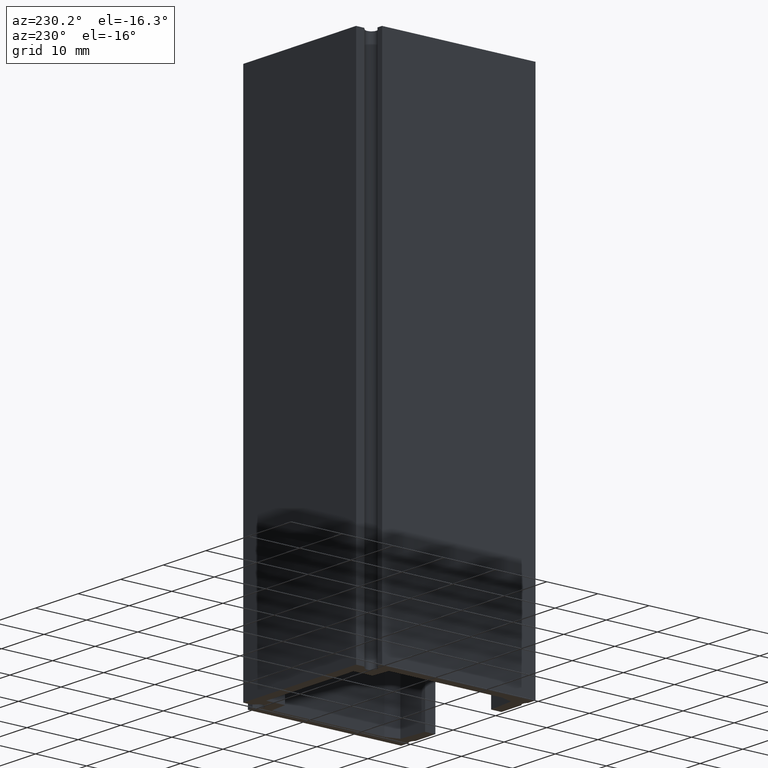
[diagram: clean part render]
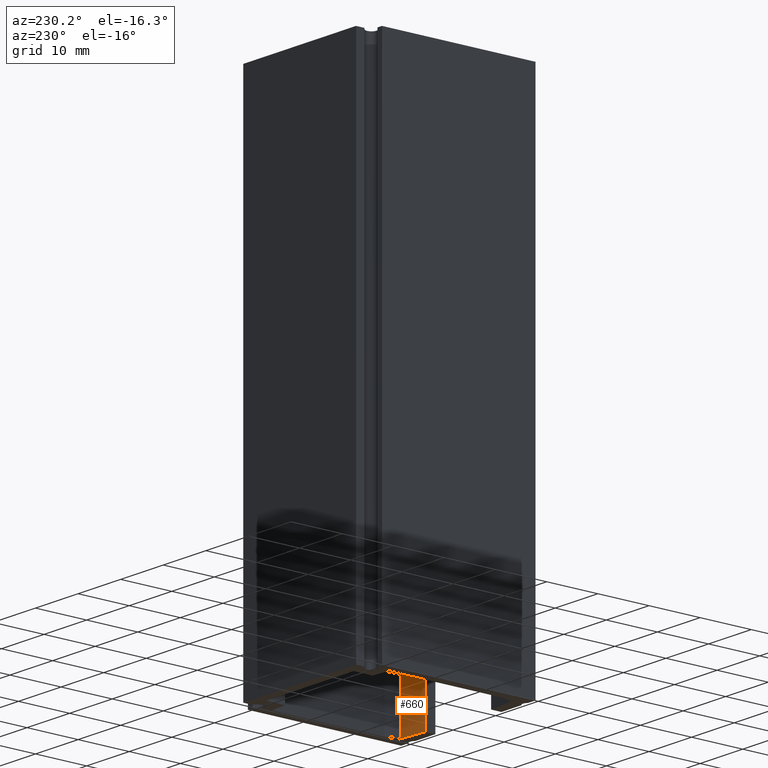
[diagram: same view with one face highlighted and labeled with its STEP entity id]
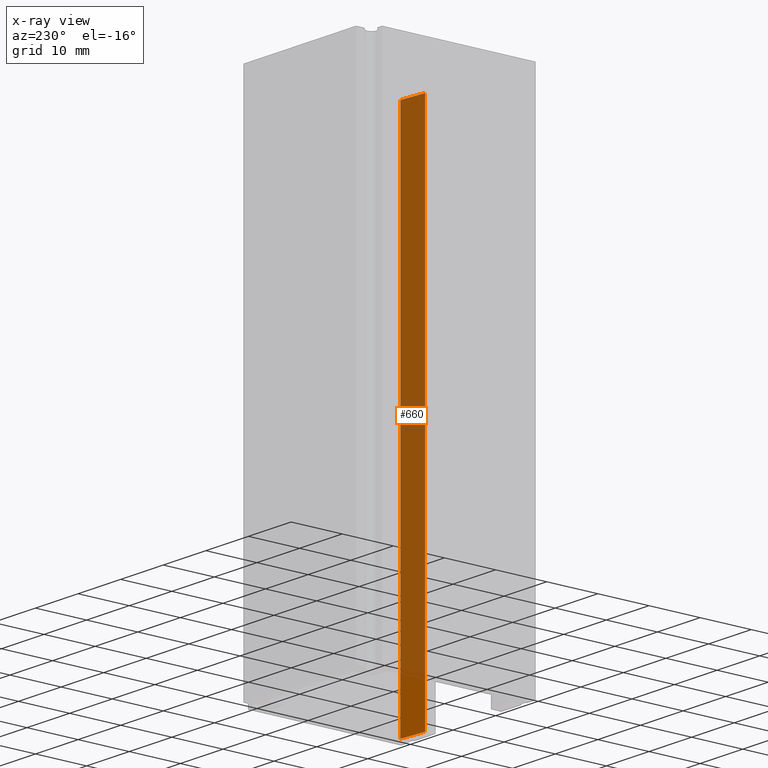
[diagram: x-ray of the same camera — body ghosted, the highlighted face saturated]
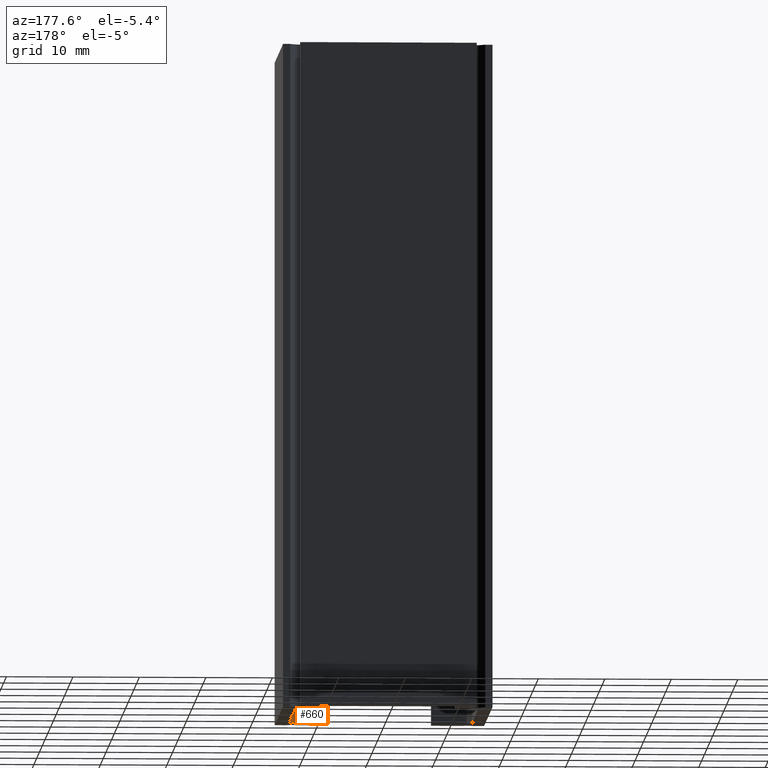
[diagram: same view with one face highlighted and labeled with its STEP entity id]
A machine part, auxiliary view. The second image highlights one B-rep face of the part: STEP entity #660.
The next image is the same camera in x-ray: the body ghosted, the highlighted face saturated — about 91% of this face is hidden behind the body in this view.
A second angle (auxiliary view) of the same face is appended — the face is thin or edge-on in the first view.
In plain terms, the highlighted planar face has unit normal (-0.0871, 0.9962, 0).
Its self-contained STEP definition (entity closure, byte-faithful):
#20=PLANE('',#723);
#52=FACE_OUTER_BOUND('',#86,.T.);
#86=EDGE_LOOP('',(#513,#514,#515,#516));
#124=LINE('',#961,#212);
#153=LINE('',#1023,#241);
#154=LINE('',#1024,#242);
#155=LINE('',#1025,#243);
#212=VECTOR('',#783,10.);
#241=VECTOR('',#822,10.);
#242=VECTOR('',#823,10.);
#243=VECTOR('',#824,10.);
#309=VERTEX_POINT('',#958);
#310=VERTEX_POINT('',#960);
#337=VERTEX_POINT('',#1021);
#338=VERTEX_POINT('',#1022);
#376=EDGE_CURVE('',#309,#310,#124,.T.);
#407=EDGE_CURVE('',#337,#338,#153,.T.);
#408=EDGE_CURVE('',#310,#338,#154,.T.);
#409=EDGE_CURVE('',#309,#337,#155,.T.);
#513=ORIENTED_EDGE('',*,*,#407,.T.);
#514=ORIENTED_EDGE('',*,*,#408,.F.);
#515=ORIENTED_EDGE('',*,*,#376,.F.);
#516=ORIENTED_EDGE('',*,*,#409,.T.);
#660=ADVANCED_FACE('',(#52),#20,.T.);
#723=AXIS2_PLACEMENT_3D('',#1020,#820,#821);
#783=DIRECTION('',(0.996201176100114,0.0870816670531193,0.));
#820=DIRECTION('center_axis',(-0.0870816670531193,0.996201176100114,0.));
#821=DIRECTION('ref_axis',(-0.996201176100114,-0.0870816670531193,0.));
#822=DIRECTION('',(0.996201176100114,0.0870816670531193,0.));
#823=DIRECTION('',(0.,0.,1.));
#824=DIRECTION('',(0.,0.,1.));
#958=CARTESIAN_POINT('',(7.75017029936552,-30.9995801728419,0.));
#960=CARTESIAN_POINT('',(12.9989452779668,-30.540765140207,0.));
#961=CARTESIAN_POINT('',(7.157826135139,-31.0513591894979,0.));
#1020=CARTESIAN_POINT('Origin',(12.9989452779668,-30.540765140207,0.));
#1021=CARTESIAN_POINT('',(7.75017029936552,-30.9995801728419,100.));
#1022=CARTESIAN_POINT('',(12.9989452779668,-30.540765140207,100.));
#1023=CARTESIAN_POINT('',(7.157826135139,-31.0513591894979,100.));
#1024=CARTESIAN_POINT('',(12.9989452779668,-30.540765140207,0.));
#1025=CARTESIAN_POINT('',(7.75017029936552,-30.9995801728419,0.));